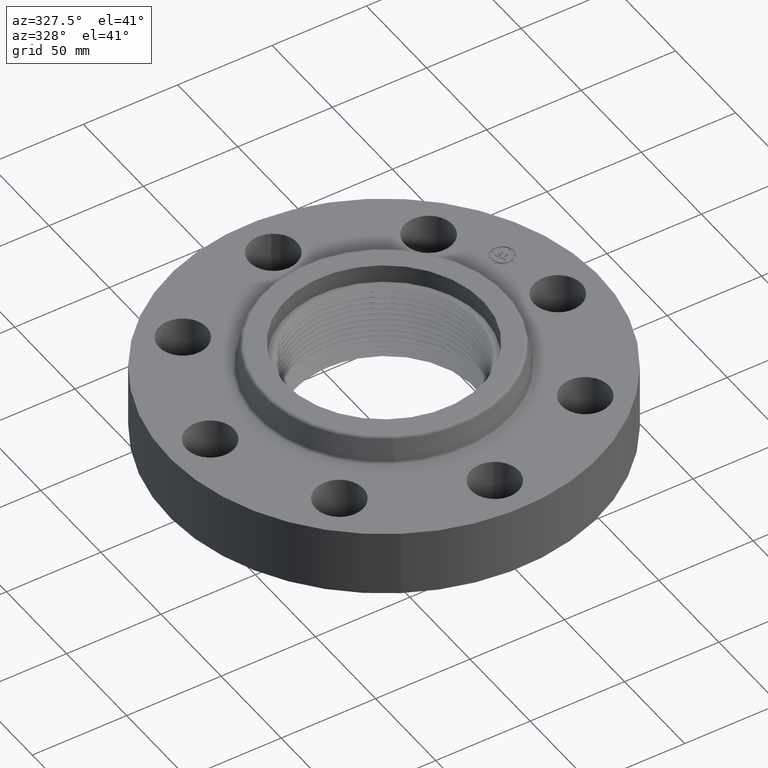
[diagram: clean part render]
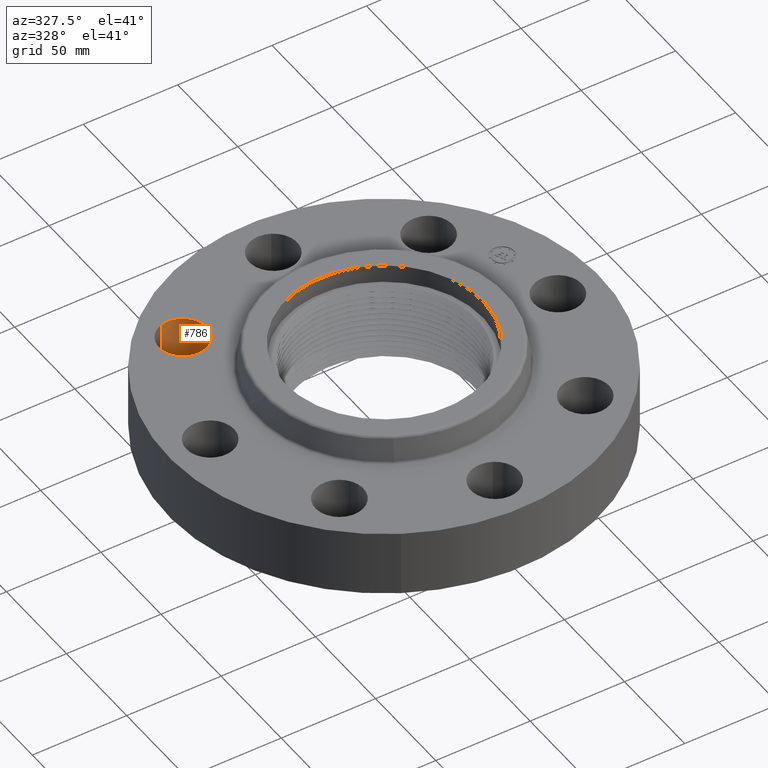
[diagram: same view with one face highlighted and labeled with its STEP entity id]
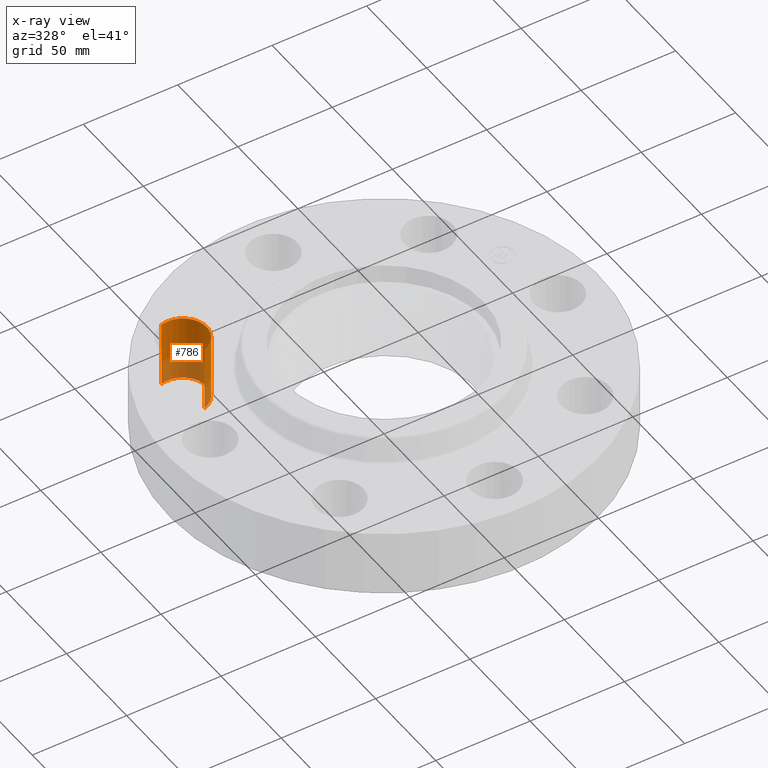
[diagram: x-ray of the same camera — body ghosted, the highlighted face saturated]
A machine part, auxiliary view. The second image highlights one B-rep face of the part: STEP entity #786.
The next image is the same camera in x-ray: the body ghosted, the highlighted face saturated — about 35% of this face is hidden behind the body in this view.
In plain terms, the highlighted cylindrical surface (edge-blend (fillet) strip) has radius 12.7 mm, axis along (0, 0, -1).
Its self-contained STEP definition (entity closure, byte-faithful):
#428=AXIS2_PLACEMENT_3D('Circle Axis2P3D',#426,#427,$) ;
#747=AXIS2_PLACEMENT_3D('Cylinder Axis2P3D',#744,#745,#746) ;
#777=AXIS2_PLACEMENT_3D('Circle Axis2P3D',#775,#776,$) ;
#421=CARTESIAN_POINT('Vertex',(-2.42249231624,2.08348726682,0.)) ;
#423=CARTESIAN_POINT('Vertex',(-2.70403184738,3.04303689681,0.)) ;
#426=CARTESIAN_POINT('Axis2P3D Location',(-2.56326208181,2.56326208181,0.)) ;
#744=CARTESIAN_POINT('Axis2P3D Location',(-2.56326208181,2.56326208181,1.37606299213)) ;
#749=CARTESIAN_POINT('Line Origine',(-2.42249231624,2.08348726682,0.690000000003)) ;
#753=CARTESIAN_POINT('Vertex',(-2.42249231624,2.08348726682,1.38000000001)) ;
#756=CARTESIAN_POINT('Line Origine',(-2.70403184738,3.04303689681,0.690000000003)) ;
#760=CARTESIAN_POINT('Vertex',(-2.70403184738,3.04303689681,1.38000000001)) ;
#775=CARTESIAN_POINT('Axis2P3D Location',(-2.56326208181,2.56326208181,1.38000000001)) ;
#427=DIRECTION('Axis2P3D Direction',(0.,0.,-0.0393700787402)) ;
#745=DIRECTION('Axis2P3D Direction',(0.,0.,-0.0393700787402)) ;
#746=DIRECTION('Axis2P3D XDirection',(-0.0110842335096,0.0377775444876,0.)) ;
#750=DIRECTION('Vector Direction',(0.,0.,-0.0393700787402)) ;
#757=DIRECTION('Vector Direction',(0.,0.,-0.0393700787402)) ;
#776=DIRECTION('Axis2P3D Direction',(0.,0.,-0.0393700787402)) ;
#751=VECTOR('Line Direction',#750,0.0393700787402) ;
#758=VECTOR('Line Direction',#757,0.0393700787402) ;
#781=ORIENTED_EDGE('',*,*,#762,.F.) ;
#782=ORIENTED_EDGE('',*,*,#430,.T.) ;
#783=ORIENTED_EDGE('',*,*,#755,.T.) ;
#784=ORIENTED_EDGE('',*,*,#779,.F.) ;
#786=ADVANCED_FACE('PartBody',(#785),#748,.F.) ;
#429=CIRCLE('generated circle',#428,0.500000000002) ;
#778=CIRCLE('generated circle',#777,0.500000000002) ;
#748=CYLINDRICAL_SURFACE('generated cylinder',#747,0.500000000002) ;
#430=EDGE_CURVE('',#424,#422,#429,.T.) ;
#755=EDGE_CURVE('',#422,#754,#752,.F.) ;
#762=EDGE_CURVE('',#424,#761,#759,.F.) ;
#779=EDGE_CURVE('',#761,#754,#778,.T.) ;
#780=EDGE_LOOP('',(#781,#782,#783,#784)) ;
#785=FACE_OUTER_BOUND('',#780,.T.) ;
#752=LINE('Line',#749,#751) ;
#759=LINE('Line',#756,#758) ;
#422=VERTEX_POINT('',#421) ;
#424=VERTEX_POINT('',#423) ;
#754=VERTEX_POINT('',#753) ;
#761=VERTEX_POINT('',#760) ;